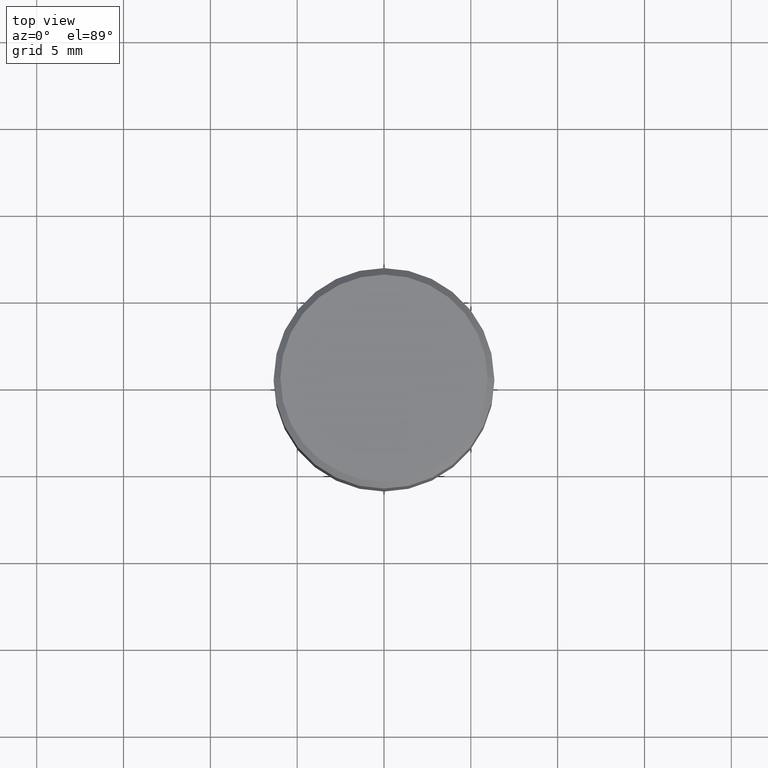
[diagram: clean part render]
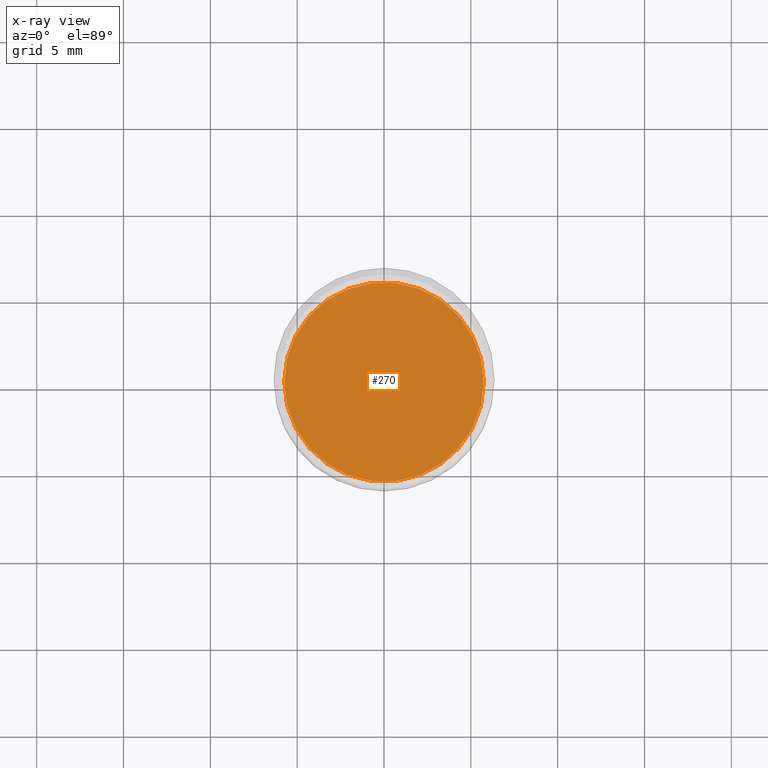
[diagram: x-ray — body ghosted, one internal face saturated and labeled with its STEP entity id]
A machine part, top view, then the same camera in x-ray: the body is ghosted and one INTERNAL B-rep face — a face not visible from any outside direction — is saturated and labeled: STEP entity #270.
In plain terms, the highlighted planar face has unit normal (-0, 0, 1).
Its self-contained STEP definition (entity closure, byte-faithful):
#28 = ORIENTED_EDGE ( 'NONE', *, *, #76, .F. ) ;
#76 = EDGE_CURVE ( 'NONE', #412, #313, #393, .T. ) ;
#87 = EDGE_CURVE ( 'NONE', #313, #412, #193, .T. ) ;
#105 = AXIS2_PLACEMENT_3D ( 'NONE', #132, #465, #420 ) ;
#110 = DIRECTION ( 'NONE',  ( 1.000000000000000000, -6.982962677686265922E-15, 4.876176775795935793E-29 ) ) ;
#132 = CARTESIAN_POINT ( 'NONE',  ( 1.222734403092568719E-29, -1.745740669421573186E-15, -0.5000000000000001110 ) ) ;
#140 = EDGE_LOOP ( 'NONE', ( #28, #381 ) ) ;
#141 = DIRECTION ( 'NONE',  ( -2.445468806185136597E-29, 3.491481338843145583E-15, 1.000000000000000000 ) ) ;
#142 = FACE_OUTER_BOUND ( 'NONE', #140, .T. ) ;
#192 = CARTESIAN_POINT ( 'NONE',  ( 0.2260500000000000009, -3.324239382712553708E-15, -0.5000000000000001110 ) ) ;
#193 = CIRCLE ( 'NONE', #454, 0.2260500000000000009 ) ;
#222 = DIRECTION ( 'NONE',  ( -2.438088387897960049E-29, 3.491481338843145188E-15, 1.000000000000000000 ) ) ;
#234 = CARTESIAN_POINT ( 'NONE',  ( -0.2260500000000000009, -1.369095880617559516E-16, -0.5000000000000001110 ) ) ;
#243 = CARTESIAN_POINT ( 'NONE',  ( 1.222734403092568719E-29, -1.745740669421573186E-15, -0.5000000000000001110 ) ) ;
#270 = ADVANCED_FACE ( 'NONE', ( #142 ), #291, .F. ) ;
#291 = PLANE ( 'NONE',  #346 ) ;
#297 = CARTESIAN_POINT ( 'NONE',  ( 1.222734403092568719E-29, -1.745740669421573186E-15, -0.5000000000000001110 ) ) ;
#313 = VERTEX_POINT ( 'NONE', #234 ) ;
#346 = AXIS2_PLACEMENT_3D ( 'NONE', #297, #222, #110 ) ;
#381 = ORIENTED_EDGE ( 'NONE', *, *, #87, .F. ) ;
#393 = CIRCLE ( 'NONE', #105, 0.2260500000000000009 ) ;
#412 = VERTEX_POINT ( 'NONE', #192 ) ;
#420 = DIRECTION ( 'NONE',  ( 1.000000000000000000, -6.982962677686266711E-15, 0.000000000000000000 ) ) ;
#454 = AXIS2_PLACEMENT_3D ( 'NONE', #243, #141, #457 ) ;
#457 = DIRECTION ( 'NONE',  ( 1.000000000000000000, -6.982962677686266711E-15, 0.000000000000000000 ) ) ;
#465 = DIRECTION ( 'NONE',  ( -2.445468806185136597E-29, 3.491481338843145583E-15, 1.000000000000000000 ) ) ;